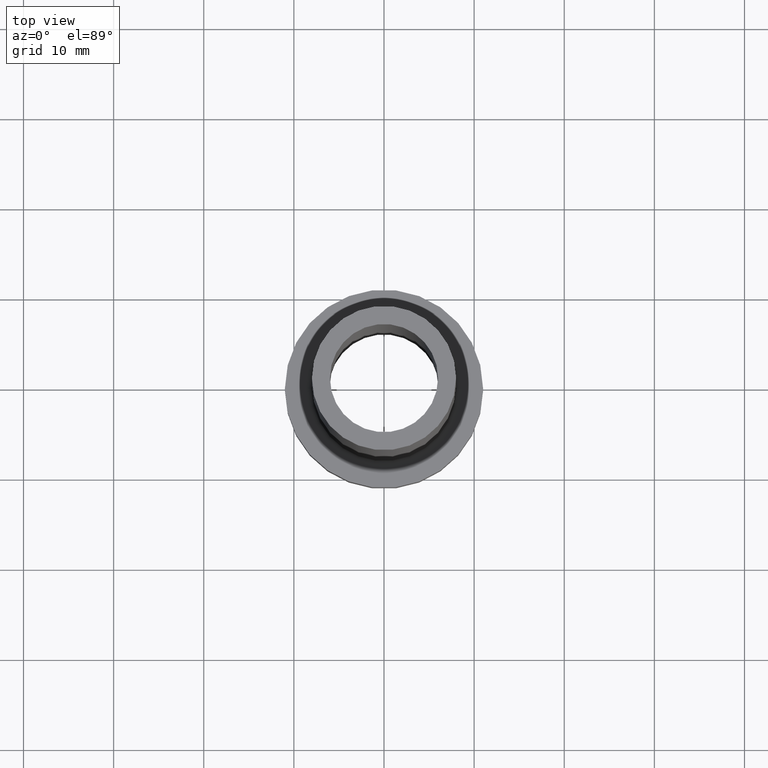
[diagram: clean part render]
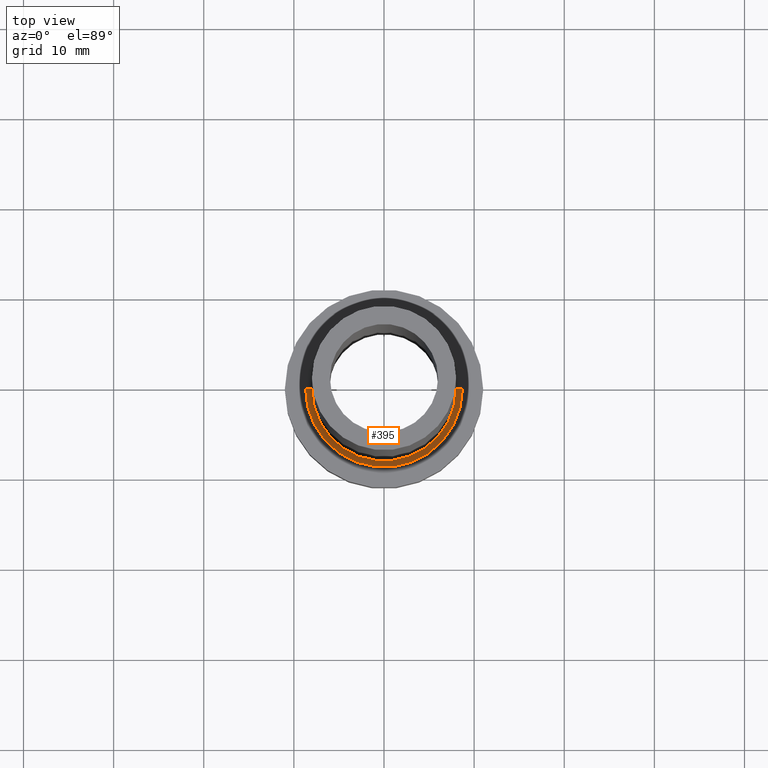
[diagram: same view with one face highlighted and labeled with its STEP entity id]
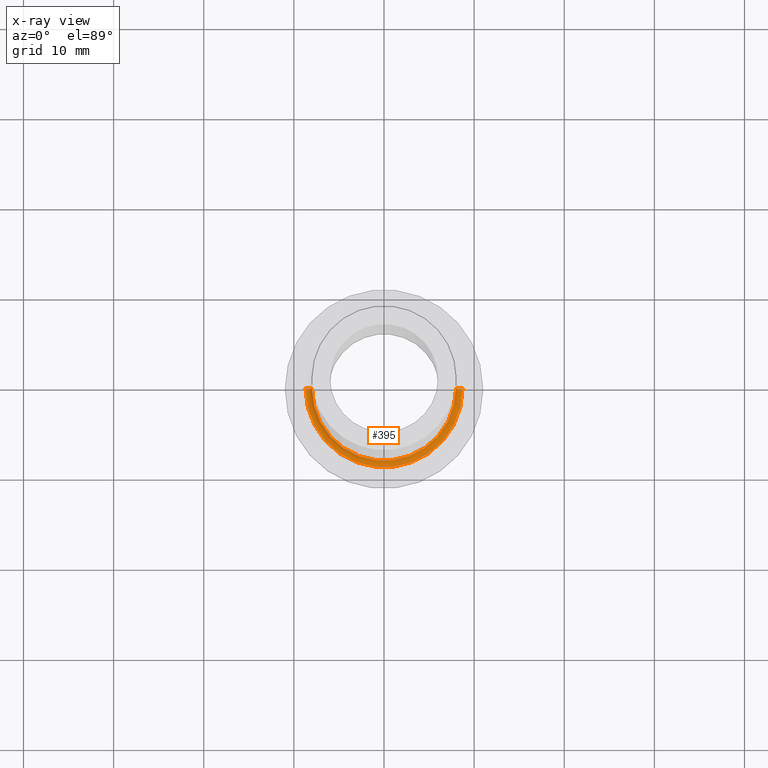
[diagram: x-ray of the same camera — body ghosted, the highlighted face saturated]
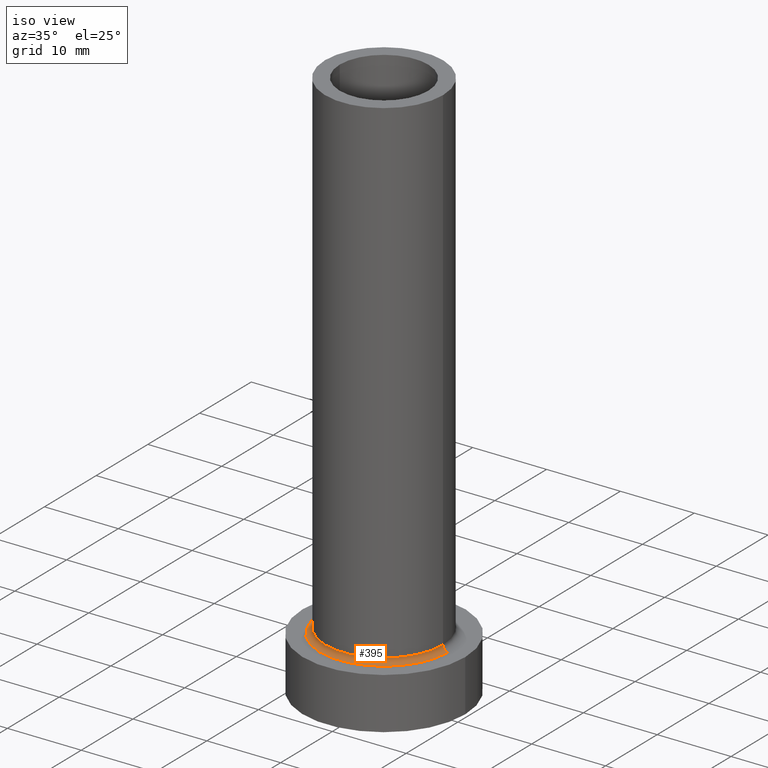
[diagram: same view with one face highlighted and labeled with its STEP entity id]
A machine part, top view. The second image highlights one B-rep face of the part: STEP entity #395.
The next image is the same camera in x-ray: the body ghosted, the highlighted face saturated — about 0% of this face is hidden behind the body in this view.
A second angle (iso view) of the same face is appended — the face is thin or edge-on in the first view.
In plain terms, the highlighted toroidal blend (fillet) surface has major radius 8.7 mm and minor (blend) radius 0.7 mm.
Its self-contained STEP definition (entity closure, byte-faithful):
#60 = CARTESIAN_POINT ( 'NONE',  ( 8.699999999999999289, 0.000000000000000000, 6.999999999999999112 ) ) ;
#88 = CARTESIAN_POINT ( 'NONE',  ( -8.699999999999999289, 1.065442715258197248E-15, 7.699999999999998401 ) ) ;
#102 = CARTESIAN_POINT ( 'NONE',  ( 0.000000000000000000, 0.000000000000000000, 7.699999999999998401 ) ) ;
#105 = DIRECTION ( 'NONE',  ( -0.000000000000000000, -0.000000000000000000, -1.000000000000000000 ) ) ;
#110 = DIRECTION ( 'NONE',  ( 0.000000000000000000, 0.000000000000000000, 1.000000000000000000 ) ) ;
#112 = CARTESIAN_POINT ( 'NONE',  ( 8.699999999999999289, 0.000000000000000000, 7.699999999999998401 ) ) ;
#113 = ORIENTED_EDGE ( 'NONE', *, *, #377, .F. ) ;
#126 = AXIS2_PLACEMENT_3D ( 'NONE', #102, #110, #312 ) ;
#140 = CARTESIAN_POINT ( 'NONE',  ( 0.000000000000000000, 0.000000000000000000, 7.699999999999998401 ) ) ;
#162 = CIRCLE ( 'NONE', #415, 0.7000000000000000666 ) ;
#166 = VERTEX_POINT ( 'NONE', #60 ) ;
#182 = FACE_OUTER_BOUND ( 'NONE', #357, .T. ) ;
#209 = AXIS2_PLACEMENT_3D ( 'NONE', #88, #376, #229 ) ;
#216 = DIRECTION ( 'NONE',  ( 1.000000000000000000, 0.000000000000000000, 0.000000000000000000 ) ) ;
#217 = DIRECTION ( 'NONE',  ( 0.000000000000000000, 0.000000000000000000, -1.000000000000000000 ) ) ;
#227 = ORIENTED_EDGE ( 'NONE', *, *, #408, .F. ) ;
#229 = DIRECTION ( 'NONE',  ( -1.000000000000000000, 1.224646799147353207E-16, 0.000000000000000000 ) ) ;
#243 = DIRECTION ( 'NONE',  ( 1.000000000000000000, 0.000000000000000000, 0.000000000000000000 ) ) ;
#249 = CIRCLE ( 'NONE', #126, 8.000000000000000000 ) ;
#254 = ORIENTED_EDGE ( 'NONE', *, *, #286, .T. ) ;
#265 = VERTEX_POINT ( 'NONE', #412 ) ;
#281 = DIRECTION ( 'NONE',  ( 0.000000000000000000, -1.000000000000000000, 0.000000000000000000 ) ) ;
#286 = EDGE_CURVE ( 'NONE', #355, #451, #358, .T. ) ;
#295 = AXIS2_PLACEMENT_3D ( 'NONE', #140, #309, #216 ) ;
#298 = ORIENTED_EDGE ( 'NONE', *, *, #346, .F. ) ;
#309 = DIRECTION ( 'NONE',  ( 0.000000000000000000, 0.000000000000000000, 1.000000000000000000 ) ) ;
#312 = DIRECTION ( 'NONE',  ( 1.000000000000000000, 0.000000000000000000, 0.000000000000000000 ) ) ;
#345 = CIRCLE ( 'NONE', #445, 8.699999999999999289 ) ;
#346 = EDGE_CURVE ( 'NONE', #265, #166, #162, .T. ) ;
#352 = CARTESIAN_POINT ( 'NONE',  ( -8.699999999999999289, 1.065442715258197248E-15, 6.999999999999999112 ) ) ;
#353 = CARTESIAN_POINT ( 'NONE',  ( -8.000000000000000000, 0.000000000000000000, 7.699999999999998401 ) ) ;
#355 = VERTEX_POINT ( 'NONE', #353 ) ;
#357 = EDGE_LOOP ( 'NONE', ( #227, #254, #113, #298 ) ) ;
#358 = CIRCLE ( 'NONE', #209, 0.6999999999999992895 ) ;
#376 = DIRECTION ( 'NONE',  ( 1.224646799147353207E-16, 1.000000000000000000, -0.000000000000000000 ) ) ;
#377 = EDGE_CURVE ( 'NONE', #166, #451, #345, .T. ) ;
#395 = ADVANCED_FACE ( 'NONE', ( #182 ), #422, .F. ) ;
#408 = EDGE_CURVE ( 'NONE', #355, #265, #249, .T. ) ;
#412 = CARTESIAN_POINT ( 'NONE',  ( 8.000000000000000000, 9.797174393178825657E-16, 7.699999999999998401 ) ) ;
#415 = AXIS2_PLACEMENT_3D ( 'NONE', #112, #281, #217 ) ;
#422 = TOROIDAL_SURFACE ( 'NONE', #295, 8.699999999999999289, 0.6999999999999999556 ) ;
#425 = CARTESIAN_POINT ( 'NONE',  ( 0.000000000000000000, 0.000000000000000000, 7.000000000000000000 ) ) ;
#445 = AXIS2_PLACEMENT_3D ( 'NONE', #425, #105, #243 ) ;
#451 = VERTEX_POINT ( 'NONE', #352 ) ;